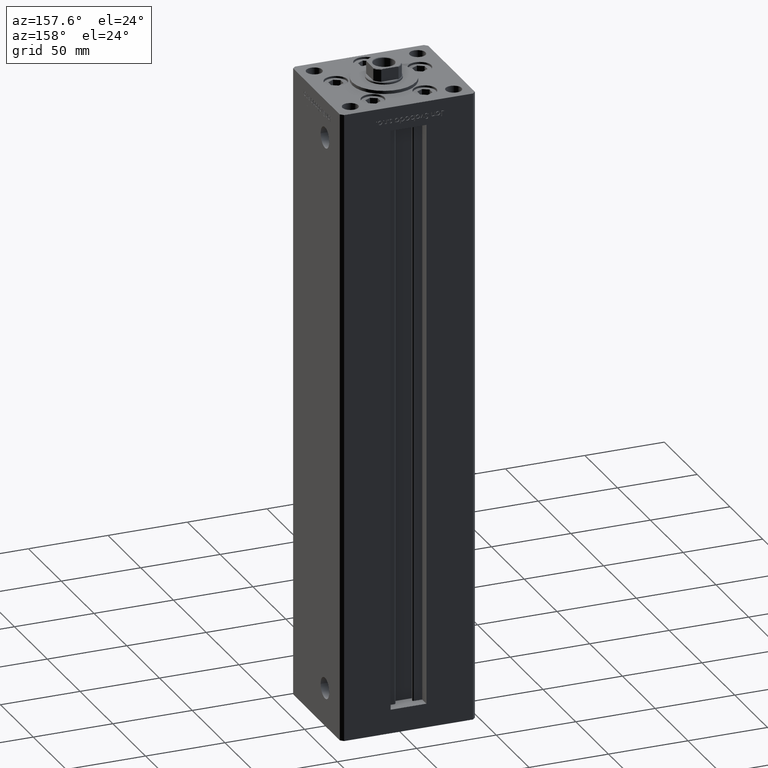
[diagram: clean part render]
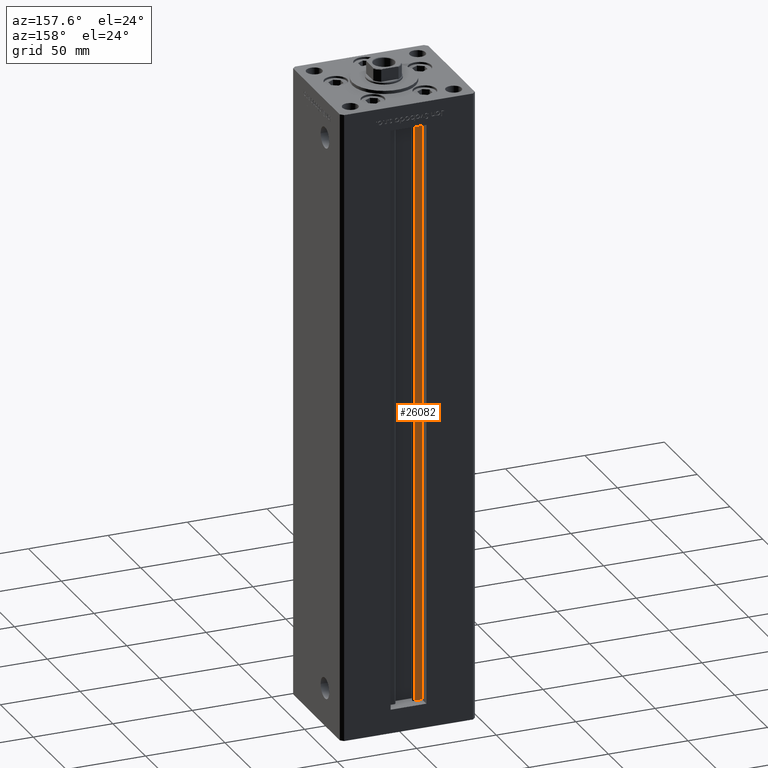
[diagram: same view with one face highlighted and labeled with its STEP entity id]
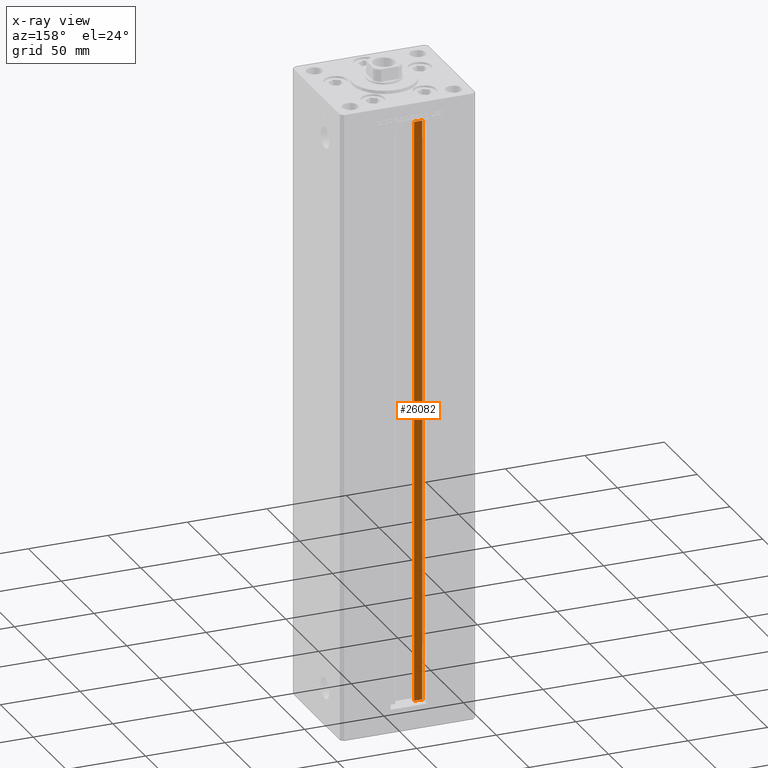
[diagram: x-ray of the same camera — body ghosted, the highlighted face saturated]
A machine part, auxiliary view. The second image highlights one B-rep face of the part: STEP entity #26082.
The next image is the same camera in x-ray: the body ghosted, the highlighted face saturated — about 0% of this face is hidden behind the body in this view.
In plain terms, the highlighted planar face has unit normal (0, -1, 0).
Its self-contained STEP definition (entity closure, byte-faithful):
#146 = VECTOR ( 'NONE', #27624, 1000.000000000000000 ) ;
#3256 = ORIENTED_EDGE ( 'NONE', *, *, #21880, .F. ) ;
#4094 = ORIENTED_EDGE ( 'NONE', *, *, #31032, .T. ) ;
#4288 = LINE ( 'NONE', #12181, #20562 ) ;
#5266 = ORIENTED_EDGE ( 'NONE', *, *, #20761, .F. ) ;
#7029 = VECTOR ( 'NONE', #26021, 1000.000000000000000 ) ;
#7524 = FACE_OUTER_BOUND ( 'NONE', #39537, .T. ) ;
#8946 = CARTESIAN_POINT ( 'NONE',  ( -11.25000000000000000, 30.99999999999999289, 0.000000000000000000 ) ) ;
#10846 = ORIENTED_EDGE ( 'NONE', *, *, #29916, .F. ) ;
#11994 = DIRECTION ( 'NONE',  ( 0.000000000000000000, -1.000000000000000000, -0.000000000000000000 ) ) ;
#12181 = CARTESIAN_POINT ( 'NONE',  ( -11.25000000000000000, 30.99999999999999289, 0.000000000000000000 ) ) ;
#20105 = CARTESIAN_POINT ( 'NONE',  ( -6.183333333333999704, 30.99999999999999289, 368.5000000000000000 ) ) ;
#20562 = VECTOR ( 'NONE', #35674, 1000.000000000000000 ) ;
#20761 = EDGE_CURVE ( 'NONE', #33578, #28572, #33550, .T. ) ;
#21880 = EDGE_CURVE ( 'NONE', #42371, #34545, #43989, .T. ) ;
#23078 = CARTESIAN_POINT ( 'NONE',  ( -6.183333333333999704, 30.99999999999999289, 0.000000000000000000 ) ) ;
#24179 = CARTESIAN_POINT ( 'NONE',  ( 0.000000000000000000, 30.99999999999999289, 368.5000000000000000 ) ) ;
#26021 = DIRECTION ( 'NONE',  ( -0.000000000000000000, -0.000000000000000000, 1.000000000000000000 ) ) ;
#26082 = ADVANCED_FACE ( 'NONE', ( #7524 ), #28076, .F. ) ;
#26523 = CARTESIAN_POINT ( 'NONE',  ( -6.183333333333999704, 30.99999999999999289, 0.000000000000000000 ) ) ;
#27624 = DIRECTION ( 'NONE',  ( -1.000000000000000000, 0.000000000000000000, 0.000000000000000000 ) ) ;
#28076 = PLANE ( 'NONE',  #34667 ) ;
#28376 = CARTESIAN_POINT ( 'NONE',  ( -11.25000000000000000, 30.99999999999999289, 368.5000000000000000 ) ) ;
#28572 = VERTEX_POINT ( 'NONE', #47487 ) ;
#28763 = VECTOR ( 'NONE', #50143, 1000.000000000000000 ) ;
#29580 = CARTESIAN_POINT ( 'NONE',  ( -6.183333333333999704, 30.99999999999999289, 0.000000000000000000 ) ) ;
#29916 = EDGE_CURVE ( 'NONE', #28572, #42371, #46076, .T. ) ;
#31032 = EDGE_CURVE ( 'NONE', #33578, #34545, #4288, .T. ) ;
#33550 = LINE ( 'NONE', #29580, #28763 ) ;
#33578 = VERTEX_POINT ( 'NONE', #8946 ) ;
#34545 = VERTEX_POINT ( 'NONE', #28376 ) ;
#34667 = AXIS2_PLACEMENT_3D ( 'NONE', #23078, #11994, #52096 ) ;
#35674 = DIRECTION ( 'NONE',  ( -0.000000000000000000, -0.000000000000000000, 1.000000000000000000 ) ) ;
#39537 = EDGE_LOOP ( 'NONE', ( #10846, #5266, #4094, #3256 ) ) ;
#42371 = VERTEX_POINT ( 'NONE', #20105 ) ;
#43989 = LINE ( 'NONE', #24179, #146 ) ;
#46076 = LINE ( 'NONE', #26523, #7029 ) ;
#47487 = CARTESIAN_POINT ( 'NONE',  ( -6.183333333333999704, 30.99999999999999289, 0.000000000000000000 ) ) ;
#50143 = DIRECTION ( 'NONE',  ( 1.000000000000000000, -0.000000000000000000, -0.000000000000000000 ) ) ;
#52096 = DIRECTION ( 'NONE',  ( 0.000000000000000000, 0.000000000000000000, -1.000000000000000000 ) ) ;